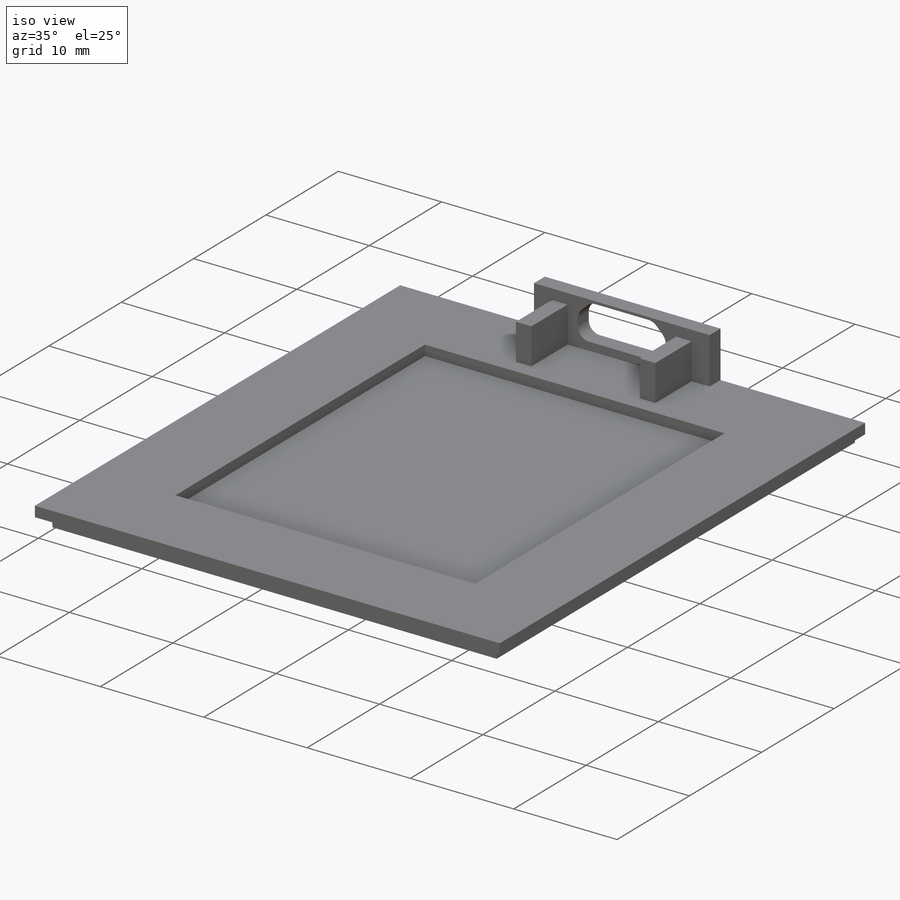
[diagram: iso view]
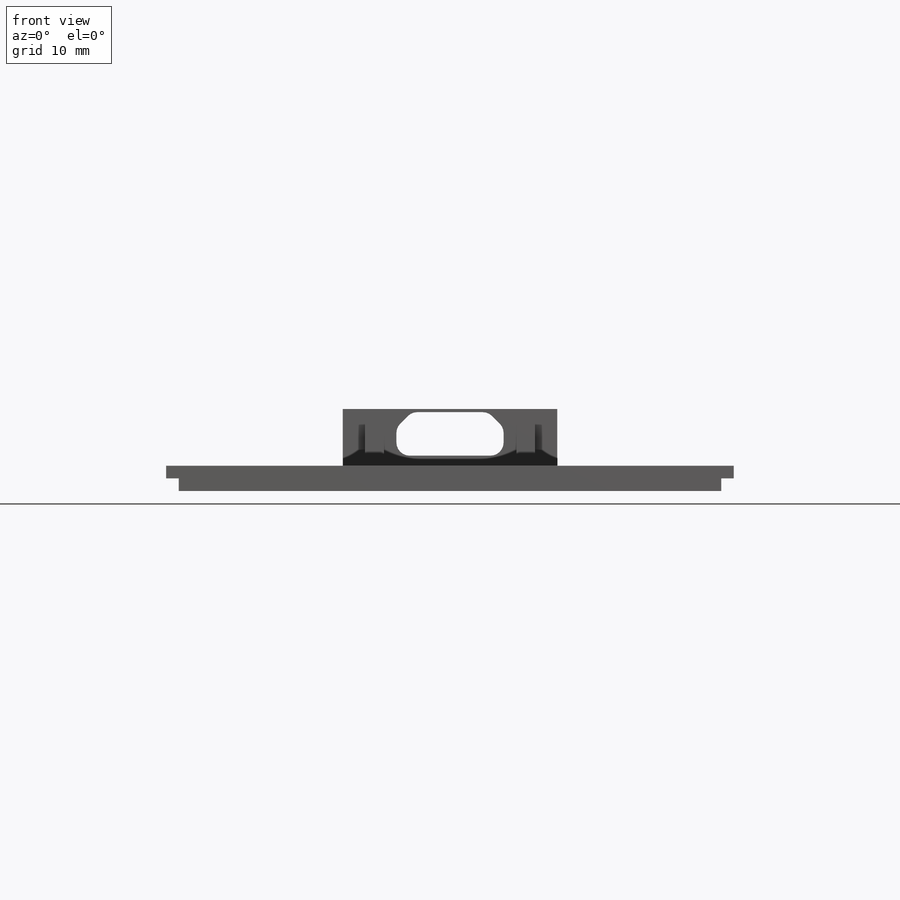
[diagram: front view]
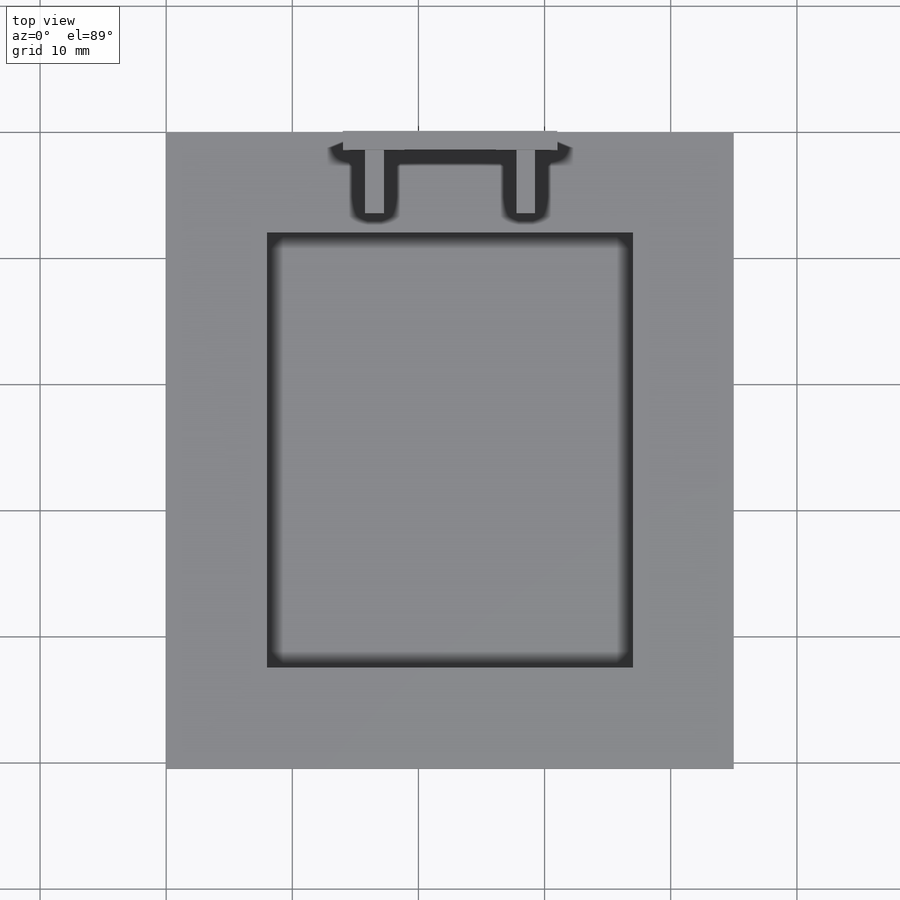
[diagram: top view]
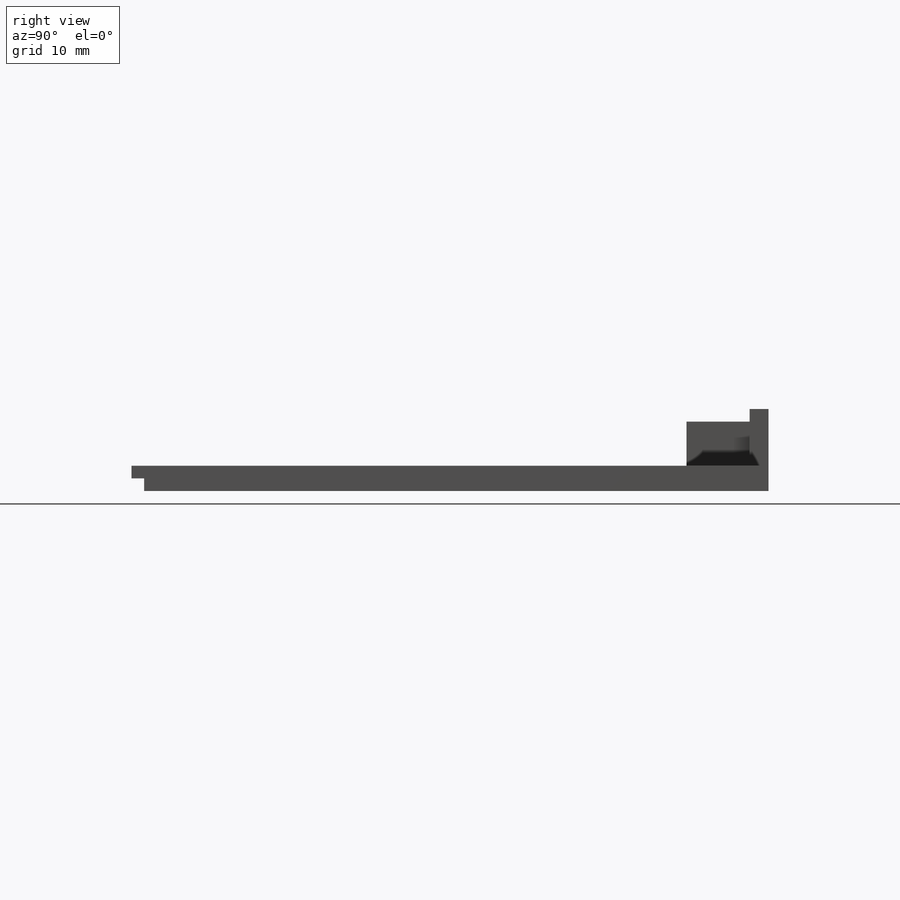
[diagram: right view]
SOLIDWORKS PART (.sldprt)
format: sldprt  version: not decoded by parser v0  size: 303,616 bytes
history: native  units: mm
features: sketch x6, plane x3, extrude x3, cut_extrude x3, material x1 (+9 scaffold rows collapsed)
feature tree (25):
  scaffold x9  (default folders/planes/origin — collapsed)
  material  "Material <sin especificar>"
  plane  "Alzado"
  plane  "Planta"
  plane  "Vista lateral"
  sketch  "Croquis1"  dims[D1=45.0mm D2=50.5mm]
  extrude  "Saliente-Extruir1"  Depth=2mm
  sketch  "Croquis10"  dims[c1.D1=1.0mm c1.D2=1.0mm c1.D3=1.0mm c1.D4=8.0mm c1.D5=8.0mm c1.D6=20.0mm c2.D1=8.0mm c2.D2=8.0mm c2.D3=8.0mm c3.D2=22.5mm c3.D1=30.0mm c4.D2=25.0mm c4.D3=8.0mm c4.D1=8.0mm]
  cut_extrude  "Cortar-Extruir5"  Depth=1mm
  sketch  "Croquis11"  dims[D1=1.0mm D2=1.0mm D3=1.0mm]
  cut_extrude  "Cortar-Extruir6"  Depth=1mm
  sketch  "Croquis6"  dims[D1=4.5mm D2=17.0mm]
  extrude  "Saliente-Extruir5"  Depth=1.5mm
  sketch  "Croquis8"  dims[c1.D1=1.05mm c1.D3=1.05mm c1.D5=1.05mm c1.D7=1.05mm c1.D9=1.05mm c1.D11=1.05mm c1.D6=1.05mm c2.D7=1.05mm c2.D8=1.05mm c2.D1=6.9mm c2.D2=1.85mm c2.D3=0.3mm c2.D4=0.3mm c2.D5=~1.174403mm c3.D2=~0.746447mm c3.D4=~0.853553mm c3.D6=~5.192893mm c3.D8=~0.853553mm c3.D10=~0.746447mm c3.D12=6.4mm c3.D13=~4.124403mm c3.D14=~0.674403mm c3.D15=5.75mm c3.D16=5.75mm c3.D17=~1.585494mm c4.D15=1.05mm c4.D16=~2.538909mm c4.D17=~3.142462mm c4.D2=1.05mm c4.D3=~1.796447mm c4.D4=2.4mm c4.D5=1.05mm c4.D7=~1.796447mm c4.D8=2.4mm c4.D9=1.05mm c4.D10=~0.746447mm c4.D11=~0.853553mm c5.D15=~0.746447mm c5.D16=~0.853553mm c5.D17=~0.853553mm c6.D16=~0.746447mm c6.D1=3.45mm c6.D2=1.05mm c6.D3=~1.796447mm c6.D4=~2.538909mm c6.D5=~0.307538mm c6.D9=4.25mm c6.D10=4.25mm c6.D11=~3.942462mm c6.D12=~3.338909mm c6.D13=~2.596447mm c6.D14=3.2mm c6.D15=1.2mm c7.D15=0.25mm c7.D6=0.5mm]
  cut_extrude  "Cortar-Extruir4"  [1 undecoded]
  sketch  "Croquis9"  dims[c1.D1=1.0mm c1.D2=4.3mm c1.D3=5.0mm c2.D1=0.5mm c2.D2=2.8mm c3.D1=1.0mm c3.D2=1.5mm c3.D3=1.0mm]
  extrude  "Saliente-Extruir6"  Depth=5mm
decode coverage: 11 of 12 modeling features carry decoded parameters
note: ~ marks probable driven/reference dimensions
note: 1 parameter value undecoded
note: suppression state not decoded; provenance and decode notes live in map.json
